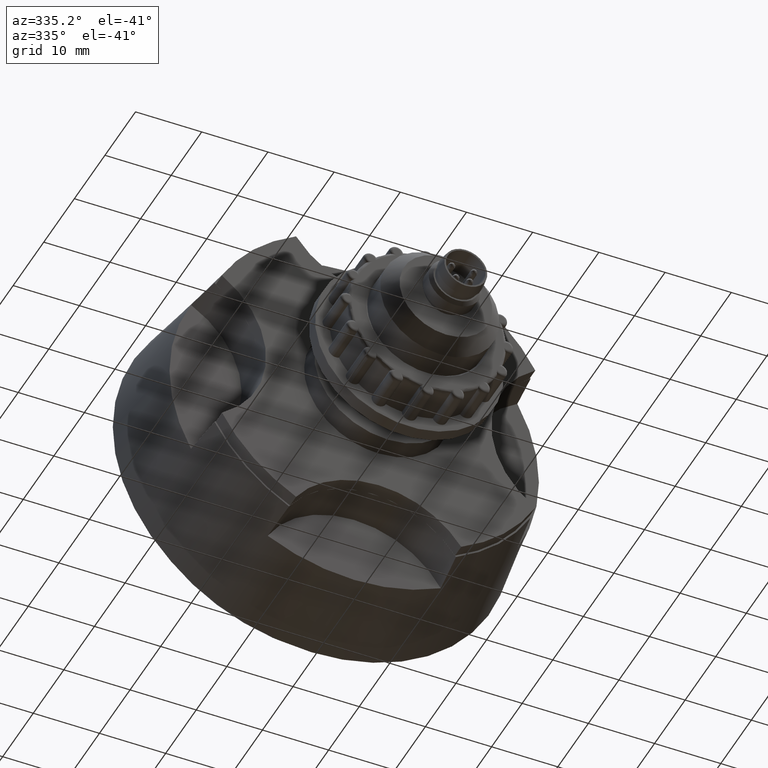
[diagram: clean part render]
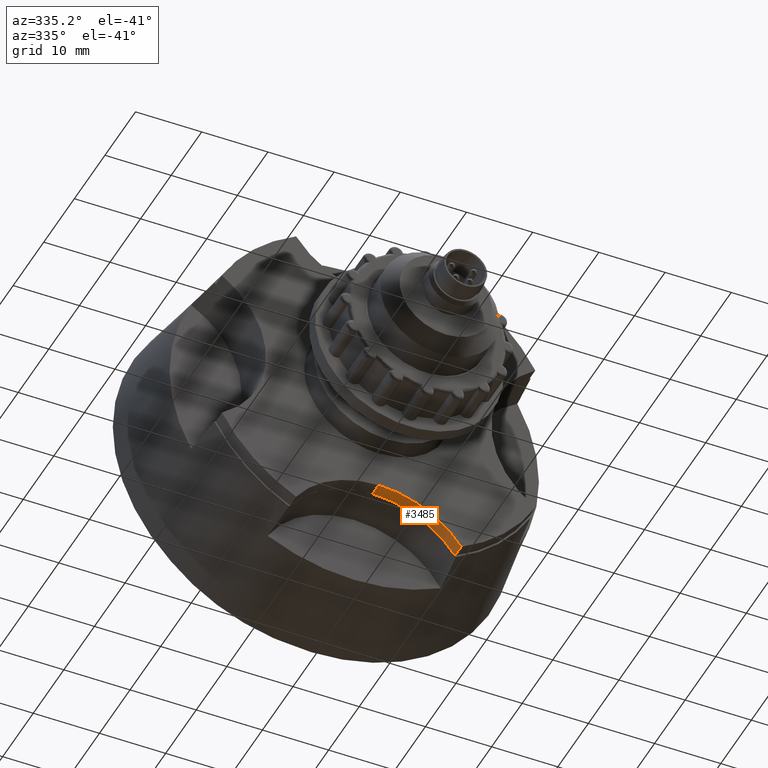
[diagram: same view with one face highlighted and labeled with its STEP entity id]
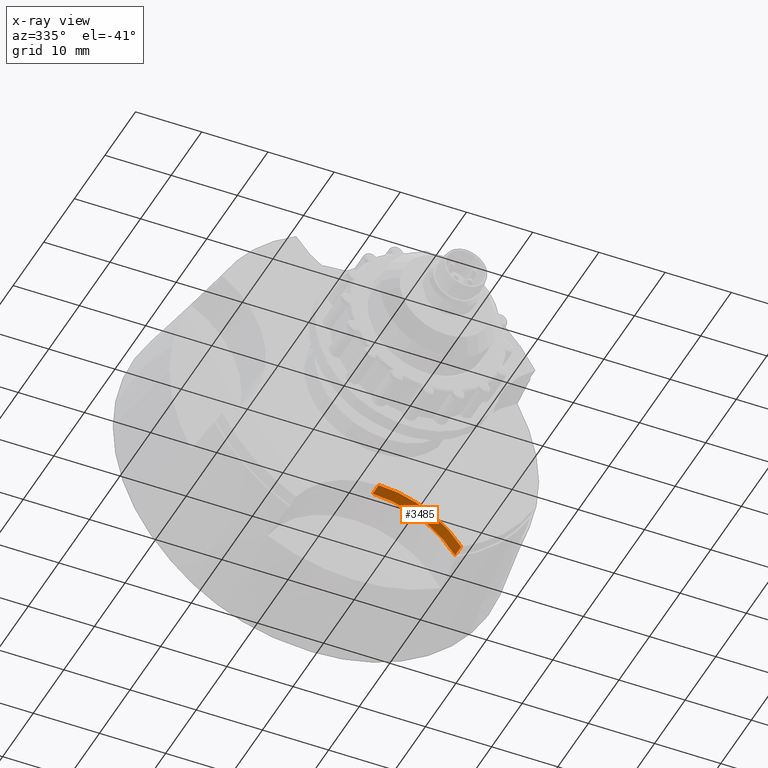
[diagram: x-ray of the same camera — body ghosted, the highlighted face saturated]
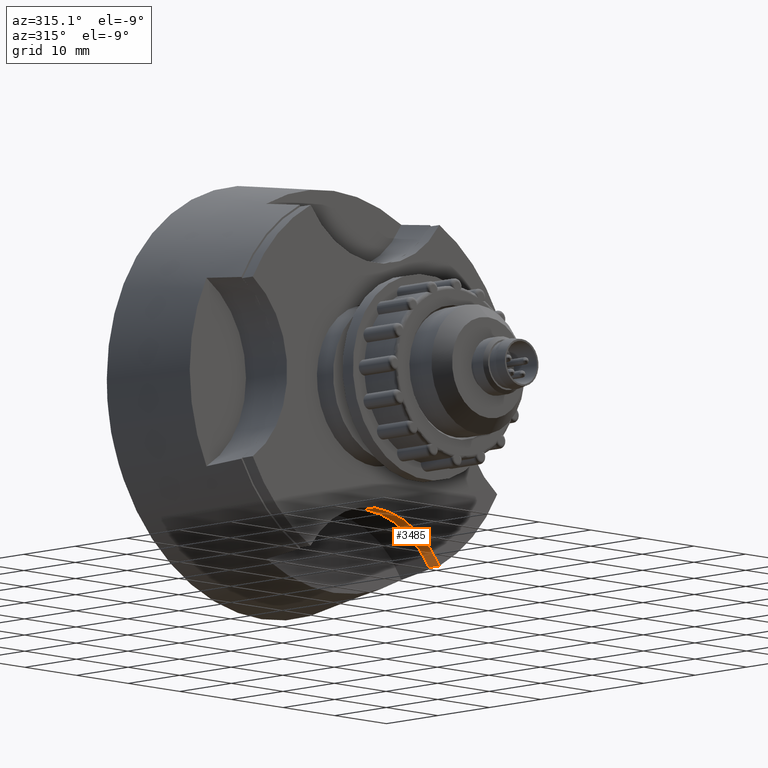
[diagram: same view with one face highlighted and labeled with its STEP entity id]
A machine part, auxiliary view. The second image highlights one B-rep face of the part: STEP entity #3485.
The next image is the same camera in x-ray: the body ghosted, the highlighted face saturated — about 0% of this face is hidden behind the body in this view.
A second angle (auxiliary view) of the same face is appended — the face is thin or edge-on in the first view.
In plain terms, the highlighted cylindrical surface (partial cylindrical patch) has radius 15 mm, axis along (0, 1, 0).
Its self-contained STEP definition (entity closure, byte-faithful):
#9 = LINE ( 'NONE', #1067, #5413 ) ;
#95 = DIRECTION ( 'NONE',  ( -0.0000000000000000000, -1.000000000000000000, -0.0000000000000000000 ) ) ;
#245 = DIRECTION ( 'NONE',  ( 0.0000000000000000000, 0.0000000000000000000, 1.000000000000000000 ) ) ;
#357 = CARTESIAN_POINT ( 'NONE',  ( 0.0000000000000000000, 22.00000000000000000, -16.99999999999943157 ) ) ;
#585 = EDGE_CURVE ( 'NONE', #3434, #5315, #3505, .T. ) ;
#1067 = CARTESIAN_POINT ( 'NONE',  ( 12.47110364684546546, 22.00000000000000000, -23.66503906249974065 ) ) ;
#1160 = DIRECTION ( 'NONE',  ( 0.0000000000000000000, 0.0000000000000000000, -1.000000000000000000 ) ) ;
#1185 = CARTESIAN_POINT ( 'NONE',  ( 0.0000000000000000000, 22.00000000000000000, -32.00000000000002842 ) ) ;
#1858 = CARTESIAN_POINT ( 'NONE',  ( 0.0000000000000000000, 22.00000000000000000, -32.00000000000002842 ) ) ;
#2045 = ORIENTED_EDGE ( 'NONE', *, *, #3941, .T. ) ;
#2211 = CIRCLE ( 'NONE', #5390, 15.00000000000059686 ) ;
#2767 = ORIENTED_EDGE ( 'NONE', *, *, #585, .T. ) ;
#2787 = ORIENTED_EDGE ( 'NONE', *, *, #3051, .F. ) ;
#2962 = CYLINDRICAL_SURFACE ( 'NONE', #3540, 15.00000000000059686 ) ;
#3051 = EDGE_CURVE ( 'NONE', #5363, #3183, #2211, .T. ) ;
#3096 = DIRECTION ( 'NONE',  ( 0.0000000000000000000, 1.000000000000000000, 0.0000000000000000000 ) ) ;
#3156 = EDGE_LOOP ( 'NONE', ( #2767, #2045, #2787, #6032 ) ) ;
#3183 = VERTEX_POINT ( 'NONE', #4013 ) ;
#3309 = CARTESIAN_POINT ( 'NONE',  ( 0.0000000000000000000, 22.00000000000000000, -16.99999999999942801 ) ) ;
#3434 = VERTEX_POINT ( 'NONE', #5827 ) ;
#3485 = ADVANCED_FACE ( 'NONE', ( #6713 ), #2962, .F. ) ;
#3505 = CIRCLE ( 'NONE', #4180, 15.00000000000059686 ) ;
#3540 = AXIS2_PLACEMENT_3D ( 'NONE', #1858, #5596, #245 ) ;
#3941 = EDGE_CURVE ( 'NONE', #5315, #3183, #6332, .T. ) ;
#3942 = DIRECTION ( 'NONE',  ( 0.0000000000000000000, 0.0000000000000000000, -1.000000000000000000 ) ) ;
#4013 = CARTESIAN_POINT ( 'NONE',  ( 0.0000000000000000000, 24.00000000000000000, -16.99999999999942801 ) ) ;
#4180 = AXIS2_PLACEMENT_3D ( 'NONE', #1185, #6040, #3942 ) ;
#4953 = VECTOR ( 'NONE', #3096, 1000.000000000000000 ) ;
#5022 = CARTESIAN_POINT ( 'NONE',  ( 0.0000000000000000000, 24.00000000000000000, -32.00000000000002842 ) ) ;
#5315 = VERTEX_POINT ( 'NONE', #3309 ) ;
#5358 = DIRECTION ( 'NONE',  ( 0.0000000000000000000, 1.000000000000000000, 0.0000000000000000000 ) ) ;
#5363 = VERTEX_POINT ( 'NONE', #5974 ) ;
#5390 = AXIS2_PLACEMENT_3D ( 'NONE', #5022, #95, #1160 ) ;
#5413 = VECTOR ( 'NONE', #5358, 1000.000000000000000 ) ;
#5596 = DIRECTION ( 'NONE',  ( 0.0000000000000000000, 1.000000000000000000, 0.0000000000000000000 ) ) ;
#5827 = CARTESIAN_POINT ( 'NONE',  ( 12.47110364684546546, 22.00000000000000000, -23.66503906249974065 ) ) ;
#5974 = CARTESIAN_POINT ( 'NONE',  ( 12.47110364684546546, 24.00000000000000000, -23.66503906249974065 ) ) ;
#6032 = ORIENTED_EDGE ( 'NONE', *, *, #6384, .F. ) ;
#6040 = DIRECTION ( 'NONE',  ( -0.0000000000000000000, -1.000000000000000000, -0.0000000000000000000 ) ) ;
#6332 = LINE ( 'NONE', #357, #4953 ) ;
#6384 = EDGE_CURVE ( 'NONE', #3434, #5363, #9, .T. ) ;
#6713 = FACE_OUTER_BOUND ( 'NONE', #3156, .T. ) ;